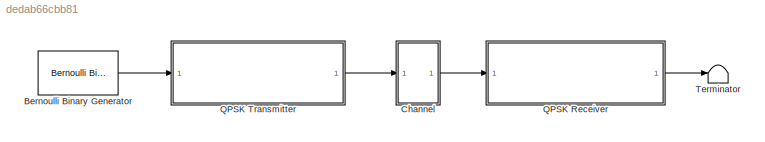
MODEL slx_dedab66cbb81
KIND model
CONFIG AbsTol = auto
CONFIG EnableMultiTasking = off
CONFIG FixedStep = auto
CONFIG InitFcn = QPSK_ini
CONFIG MaxStep = auto
CONFIG MinStep = auto
CONFIG RelTol = 1e-3
CONFIG SampleTimeConstraint = Unconstrained
CONFIG Solver = VariableStepAuto
CONFIG SolverName = VariableStepAuto
CONFIG StartTime = 0.0
CONFIG StopTime = inf
BLOCK [Reference] Bernoulli Binary Generator  REF=commrandsrc3/Bernoulli Binary
Generator
  Ports = [0, 1]
  SourceBlock = commrandsrc3/Bernoulli Binary\nGenerator
  SourceProductBaseCode = CM
  SourceProductName = Communications Toolbox
  SourceType = Bernoulli Binary Generator
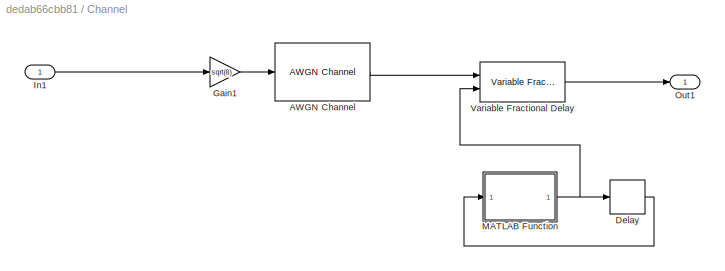
BLOCK [SubSystem] Channel
  Ports = [1, 1]
  RequestExecContextInheritance = off
BLOCK [Reference] Channel/AWGN Channel  REF=commchan3/AWGN
Channel
  Ports = [1, 1]
  SourceBlock = commchan3/AWGN\nChannel
  SourceProductBaseCode = CM
  SourceProductName = Communications Toolbox
  SourceType = AWGN Channel
  UserDataPersistent = on
BLOCK [Delay] Channel/Delay
  DelayLength = 1
  InputPortMap = u0
  Ports = [1, 1]
BLOCK [Gain] Channel/Gain1
  Gain = sqrt(8)
  OutDataTypeStr = Inherit: Inherit via internal rule
  ParamDataTypeStr = Inherit: Inherit via internal rule
  SaturateOnIntegerOverflow = off
BLOCK [Inport] Channel/In1
  IconDisplay = Port number
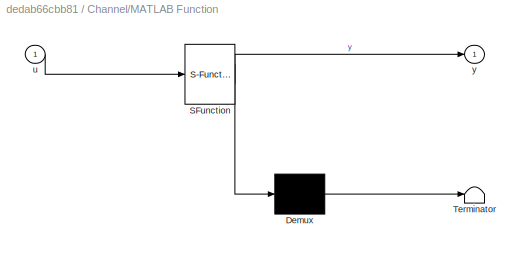
BLOCK [SubSystem] Channel/MATLAB Function
  ErrorFcn = Stateflow.Translate.translate
  PermitHierarchicalResolution = ExplicitOnly
  Ports = [1, 1]
  RequestExecContextInheritance = off
  SFBlockType = MATLAB Function
  TreatAsAtomicUnit = on
BLOCK [Demux] Channel/MATLAB Function/ Demux 
  Outputs = 1
  Ports = [1, 1]
BLOCK [S-Function] Channel/MATLAB Function/ SFunction 
  EnableBusSupport = on
  FunctionName = sf_sfun
  PortCounts = [1 2]
  Ports = [1, 2]
  SFcnIsStateOwnerBlock = off
  SFunctionDeploymentMode = off
  Tag = Stateflow S-Function QPSK_HW10 2
BLOCK [Terminator] Channel/MATLAB Function/ Terminator 
BLOCK [Inport] Channel/MATLAB Function/u
  IconDisplay = Port number
BLOCK [Outport] Channel/MATLAB Function/y
  IconDisplay = Port number
BLOCK [Outport] Channel/Out1
  IconDisplay = Port number
BLOCK [Reference] Channel/Variable Fractional Delay  REF=dspsigops/Variable
Fractional Delay
  Ports = [2, 1]
  SourceBlock = dspsigops/Variable\nFractional Delay
  SourceProductBaseCode = DS
  SourceProductName = DSP System Toolbox
  SourceType = Variable Fractional Delay
  UserDataPersistent = on
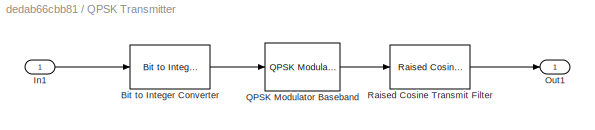
BLOCK [SubSystem] QPSK  Transmitter
  Ports = [1, 1]
  RequestExecContextInheritance = off
BLOCK [Reference] QPSK  Transmitter/Bit to Integer Converter  REF=commutil2/Bit to Integer
Converter
  Ports = [1, 1]
  SourceBlock = commutil2/Bit to Integer\nConverter
  SourceProductBaseCode = CM
  SourceProductName = Communications Toolbox
  SourceType = Bit to Integer Converter
BLOCK [Inport] QPSK  Transmitter/In1
  IconDisplay = Port number
BLOCK [Outport] QPSK  Transmitter/Out1
  IconDisplay = Port number
BLOCK [Reference] QPSK  Transmitter/QPSK Modulator Baseband  REF=commdigbbndpm3/QPSK
Modulator
Baseband
  Ports = [1, 1]
  SourceBlock = commdigbbndpm3/QPSK\nModulator\nBaseband
  SourceProductBaseCode = CM
  SourceProductName = Communications Toolbox
  SourceType = QPSK Modulator Baseband
BLOCK [Reference] QPSK  Transmitter/Raised Cosine Transmit Filter  REF=commfilt2/Raised Cosine
Transmit Filter
  Ports = [1, 1]
  SourceBlock = commfilt2/Raised Cosine\nTransmit Filter
  SourceProductBaseCode = CM
  SourceProductName = Communications Toolbox
  SourceType = Raised Cosine Transmit Filter
  UserDataPersistent = on
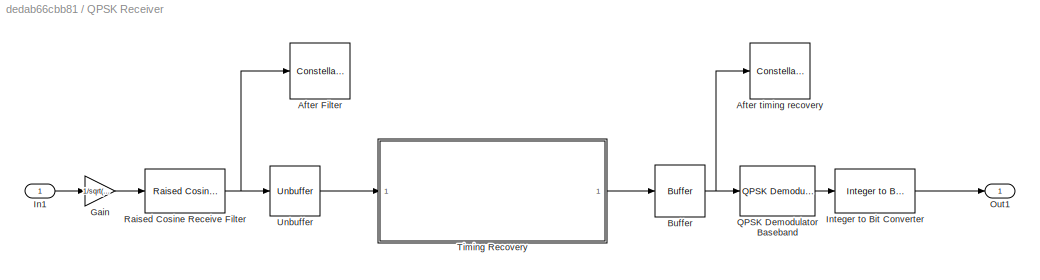
BLOCK [SubSystem] QPSK Receiver
  Ports = [1, 1]
  RequestExecContextInheritance = off
BLOCK [ConstellationDiagram] QPSK Receiver/After Filter
  Ports = [1]
  ScopeSpecificationString = comm.scopes.ConstellationDiagramBlockCfg('CurrentConfiguration', extmgr.ConfigurationSet(extmgr.Configuration('Core','General UI',true),extmgr.Configuration('Core','Source UI',true),extmgr.Configuration('Sources','WiredSimulink',true),extmgr.Configuration('Sources','SimulinkEvent',false),extmgr.Configuration('Sources','Simulink',false),extmgr.Configuration('Sources','File',false),extmgr.Configurat...<+2057ch>
BLOCK [ConstellationDiagram] QPSK Receiver/After timing recovery 
  Ports = [1]
  ScopeSpecificationString = comm.scopes.ConstellationDiagramBlockCfg('CurrentConfiguration', extmgr.ConfigurationSet(extmgr.Configuration('Core','General UI',true),extmgr.Configuration('Core','Source UI',true),extmgr.Configuration('Sources','WiredSimulink',true),extmgr.Configuration('Sources','SimulinkEvent',false),extmgr.Configuration('Sources','Simulink',false),extmgr.Configuration('Sources','File',false),extmgr.Configurat...<+2260ch>
BLOCK [Buffer] QPSK Receiver/Buffer
  N = 256
  OutputFrames = off
BLOCK [Gain] QPSK Receiver/Gain
  Gain = 1/sqrt(8)
  OutDataTypeStr = Inherit: Inherit via internal rule
  ParamDataTypeStr = Inherit: Inherit via internal rule
  SaturateOnIntegerOverflow = off
BLOCK [Inport] QPSK Receiver/In1
  IconDisplay = Port number
BLOCK [Reference] QPSK Receiver/Integer to Bit Converter  REF=commutil2/Integer to Bit
Converter
  Ports = [1, 1]
  SourceBlock = commutil2/Integer to Bit\nConverter
  SourceProductBaseCode = CM
  SourceProductName = Communications Toolbox
  SourceType = Integer to Bit Converter
BLOCK [Outport] QPSK Receiver/Out1
  IconDisplay = Port number
BLOCK [Reference] QPSK Receiver/QPSK Demodulator Baseband  REF=commdigbbndpm3/QPSK
Demodulator
Baseband
  Ports = [1, 1]
  SourceBlock = commdigbbndpm3/QPSK\nDemodulator\nBaseband
  SourceProductBaseCode = CM
  SourceProductName = Communications Toolbox
  SourceType = QPSK Demodulator Baseband
BLOCK [Reference] QPSK Receiver/Raised Cosine Receive Filter  REF=commfilt2/Raised Cosine
Receive Filter
  Ports = [1, 1]
  SourceBlock = commfilt2/Raised Cosine\nReceive Filter
  SourceProductBaseCode = CM
  SourceProductName = Communications Toolbox
  SourceType = Raised Cosine Receive Filter
  UserDataPersistent = on
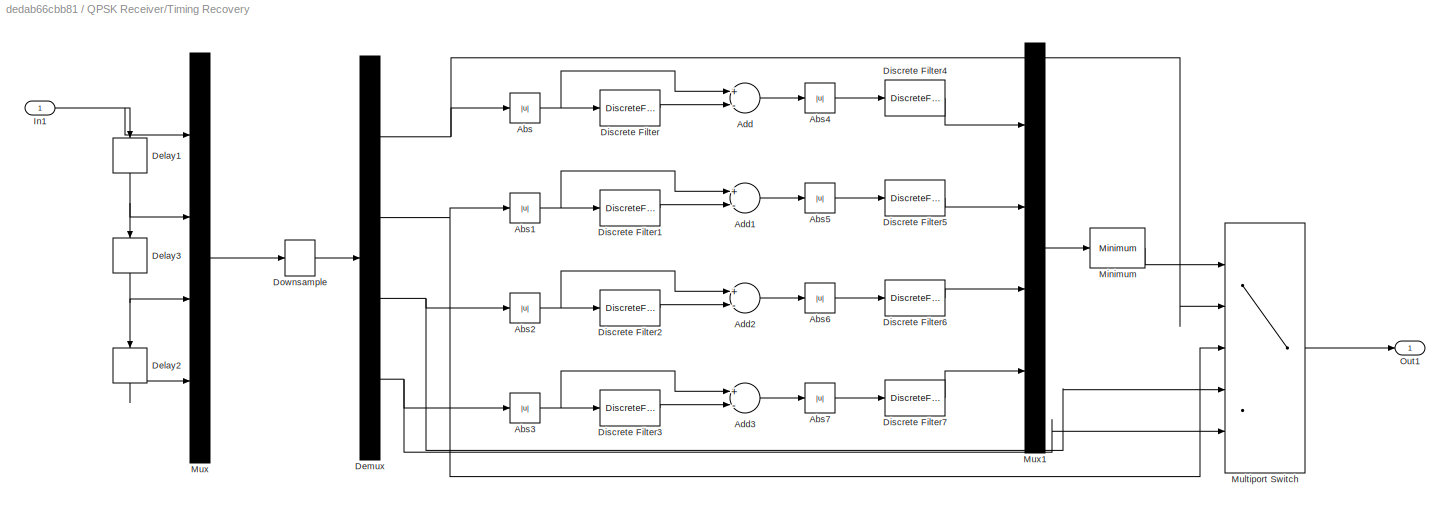
BLOCK [SubSystem] QPSK Receiver/Timing Recovery
  Ports = [1, 1]
  RequestExecContextInheritance = off
BLOCK [Abs] QPSK Receiver/Timing Recovery/Abs
  SaturateOnIntegerOverflow = off
BLOCK [Abs] QPSK Receiver/Timing Recovery/Abs1
  SaturateOnIntegerOverflow = off
BLOCK [Abs] QPSK Receiver/Timing Recovery/Abs2
  SaturateOnIntegerOverflow = off
BLOCK [Abs] QPSK Receiver/Timing Recovery/Abs3
  SaturateOnIntegerOverflow = off
BLOCK [Abs] QPSK Receiver/Timing Recovery/Abs4
  SaturateOnIntegerOverflow = off
BLOCK [Abs] QPSK Receiver/Timing Recovery/Abs5
  SaturateOnIntegerOverflow = off
BLOCK [Abs] QPSK Receiver/Timing Recovery/Abs6
  SaturateOnIntegerOverflow = off
BLOCK [Abs] QPSK Receiver/Timing Recovery/Abs7
  SaturateOnIntegerOverflow = off
BLOCK [Sum] QPSK Receiver/Timing Recovery/Add
  InputSameDT = off
  Inputs = +-
  OutDataTypeStr = Inherit: Inherit via internal rule
  Ports = [2, 1]
  SaturateOnIntegerOverflow = off
BLOCK [Sum] QPSK Receiver/Timing Recovery/Add1
  InputSameDT = off
  Inputs = +-
  OutDataTypeStr = Inherit: Inherit via internal rule
  Ports = [2, 1]
  SaturateOnIntegerOverflow = off
BLOCK [Sum] QPSK Receiver/Timing Recovery/Add2
  InputSameDT = off
  Inputs = +-
  OutDataTypeStr = Inherit: Inherit via internal rule
  Ports = [2, 1]
  SaturateOnIntegerOverflow = off
BLOCK [Sum] QPSK Receiver/Timing Recovery/Add3
  InputSameDT = off
  Inputs = +-
  OutDataTypeStr = Inherit: Inherit via internal rule
  Ports = [2, 1]
  SaturateOnIntegerOverflow = off
BLOCK [Delay] QPSK Receiver/Timing Recovery/Delay1
  DelayLength = 1
  InputPortMap = u0
  Ports = [1, 1]
BLOCK [Delay] QPSK Receiver/Timing Recovery/Delay2
  DelayLength = 1
  InputPortMap = u0
  Ports = [1, 1]
BLOCK [Delay] QPSK Receiver/Timing Recovery/Delay3
  DelayLength = 1
  InputPortMap = u0
  Ports = [1, 1]
BLOCK [Demux] QPSK Receiver/Timing Recovery/Demux
  DisplayOption = bar
  Ports = [1, 4]
BLOCK [DiscreteFilter] QPSK Receiver/Timing Recovery/Discrete Filter
  Denominator = [1 0.92]
  InputPortMap = u0
  InputProcessing = Columns as channels (frame based)
  Numerator = [1-0.92]
  Ports = [1, 1]
BLOCK [DiscreteFilter] QPSK Receiver/Timing Recovery/Discrete Filter1
  Denominator = [1 0.92]
  InputPortMap = u0
  InputProcessing = Columns as channels (frame based)
  Numerator = [1-0.92]
  Ports = [1, 1]
BLOCK [DiscreteFilter] QPSK Receiver/Timing Recovery/Discrete Filter2
  Denominator = [1 0.92]
  InputPortMap = u0
  InputProcessing = Columns as channels (frame based)
  Numerator = [1-0.92]
  Ports = [1, 1]
BLOCK [DiscreteFilter] QPSK Receiver/Timing Recovery/Discrete Filter3
  Denominator = [1 0.92]
  InputPortMap = u0
  InputProcessing = Columns as channels (frame based)
  Numerator = [1-0.92]
  Ports = [1, 1]
BLOCK [DiscreteFilter] QPSK Receiver/Timing Recovery/Discrete Filter4
  Denominator = [1 0.92]
  InputPortMap = u0
  InputProcessing = Columns as channels (frame based)
  Numerator = [1-0.92]
  Ports = [1, 1]
BLOCK [DiscreteFilter] QPSK Receiver/Timing Recovery/Discrete Filter5
  Denominator = [1 0.92]
  InputPortMap = u0
  InputProcessing = Columns as channels (frame based)
  Numerator = [1-0.92]
  Ports = [1, 1]
BLOCK [DiscreteFilter] QPSK Receiver/Timing Recovery/Discrete Filter6
  Denominator = [1 0.92]
  InputPortMap = u0
  InputProcessing = Columns as channels (frame based)
  Numerator = [1-0.92]
  Ports = [1, 1]
BLOCK [DiscreteFilter] QPSK Receiver/Timing Recovery/Discrete Filter7
  Denominator = [1 0.92]
  InputPortMap = u0
  InputProcessing = Columns as channels (frame based)
  Numerator = [1-0.92]
  Ports = [1, 1]
BLOCK [DownSample] QPSK Receiver/Timing Recovery/Downsample
  InputProcessing = Elements as channels (sample based)
  N = 4
  RateOptions = Allow multirate processing
BLOCK [Inport] QPSK Receiver/Timing Recovery/In1
  IconDisplay = Port number
BLOCK [Reference] QPSK Receiver/Timing Recovery/Minimum  REF=dspstat3/Minimum
  Ports = [1, 1]
  SourceBlock = dspstat3/Minimum
  SourceProductBaseCode = DS
  SourceProductName = DSP System Toolbox
  SourceType = Minimum
  UserDataPersistent = on
BLOCK [MultiPortSwitch] QPSK Receiver/Timing Recovery/Multiport Switch
  InputSameDT = off
  Inputs = 4
  Ports = [5, 1]
  SaturateOnIntegerOverflow = off
BLOCK [Mux] QPSK Receiver/Timing Recovery/Mux
  DisplayOption = bar
  Ports = [4, 1]
BLOCK [Mux] QPSK Receiver/Timing Recovery/Mux1
  DisplayOption = bar
  Ports = [4, 1]
BLOCK [Outport] QPSK Receiver/Timing Recovery/Out1
  IconDisplay = Port number
BLOCK [Unbuffer] QPSK Receiver/Unbuffer
  Ports = [1, 1]
BLOCK [Terminator] Terminator
LINE Bernoulli Binary Generator:1 -> QPSK  Transmitter:1
LINE Channel/AWGN Channel:1 -> Channel/Variable Fractional Delay:1
LINE Channel/Delay:1 -> Channel/MATLAB Function:1
LINE Channel/Gain1:1 -> Channel/AWGN Channel:1
LINE Channel/In1:1 -> Channel/Gain1:1
NET Channel/MATLAB Function:1 -> Channel/Delay:1, Channel/Variable Fractional Delay:2
LINE Channel/Variable Fractional Delay:1 -> Channel/Out1:1
LINE Channel:1 -> QPSK Receiver:1
LINE QPSK  Transmitter/Bit to Integer Converter:1 -> QPSK  Transmitter/QPSK Modulator Baseband:1
LINE QPSK  Transmitter/In1:1 -> QPSK  Transmitter/Bit to Integer Converter:1
LINE QPSK  Transmitter/QPSK Modulator Baseband:1 -> QPSK  Transmitter/Raised Cosine Transmit Filter:1
LINE QPSK  Transmitter/Raised Cosine Transmit Filter:1 -> QPSK  Transmitter/Out1:1
LINE QPSK  Transmitter:1 -> Channel:1
NET QPSK Receiver/Buffer:1 -> QPSK Receiver/After timing recovery :1, QPSK Receiver/QPSK Demodulator Baseband:1
LINE QPSK Receiver/Gain:1 -> QPSK Receiver/Raised Cosine Receive Filter:1
LINE QPSK Receiver/In1:1 -> QPSK Receiver/Gain:1
LINE QPSK Receiver/Integer to Bit Converter:1 -> QPSK Receiver/Out1:1
LINE QPSK Receiver/QPSK Demodulator Baseband:1 -> QPSK Receiver/Integer to Bit Converter:1
NET QPSK Receiver/Raised Cosine Receive Filter:1 -> QPSK Receiver/After Filter:1, QPSK Receiver/Unbuffer:1
NET QPSK Receiver/Timing Recovery/Abs1:1 -> QPSK Receiver/Timing Recovery/Add1:1, QPSK Receiver/Timing Recovery/Discrete Filter1:1
NET QPSK Receiver/Timing Recovery/Abs2:1 -> QPSK Receiver/Timing Recovery/Add2:1, QPSK Receiver/Timing Recovery/Discrete Filter2:1
NET QPSK Receiver/Timing Recovery/Abs3:1 -> QPSK Receiver/Timing Recovery/Add3:1, QPSK Receiver/Timing Recovery/Discrete Filter3:1
LINE QPSK Receiver/Timing Recovery/Abs4:1 -> QPSK Receiver/Timing Recovery/Discrete Filter4:1
LINE QPSK Receiver/Timing Recovery/Abs5:1 -> QPSK Receiver/Timing Recovery/Discrete Filter5:1
LINE QPSK Receiver/Timing Recovery/Abs6:1 -> QPSK Receiver/Timing Recovery/Discrete Filter6:1
LINE QPSK Receiver/Timing Recovery/Abs7:1 -> QPSK Receiver/Timing Recovery/Discrete Filter7:1
NET QPSK Receiver/Timing Recovery/Abs:1 -> QPSK Receiver/Timing Recovery/Add:1, QPSK Receiver/Timing Recovery/Discrete Filter:1
LINE QPSK Receiver/Timing Recovery/Add1:1 -> QPSK Receiver/Timing Recovery/Abs5:1
LINE QPSK Receiver/Timing Recovery/Add2:1 -> QPSK Receiver/Timing Recovery/Abs6:1
LINE QPSK Receiver/Timing Recovery/Add3:1 -> QPSK Receiver/Timing Recovery/Abs7:1
LINE QPSK Receiver/Timing Recovery/Add:1 -> QPSK Receiver/Timing Recovery/Abs4:1
NET QPSK Receiver/Timing Recovery/Delay1:1 -> QPSK Receiver/Timing Recovery/Delay3:1, QPSK Receiver/Timing Recovery/Mux:2
LINE QPSK Receiver/Timing Recovery/Delay2:1 -> QPSK Receiver/Timing Recovery/Mux:4
NET QPSK Receiver/Timing Recovery/Delay3:1 -> QPSK Receiver/Timing Recovery/Delay2:1, QPSK Receiver/Timing Recovery/Mux:3
NET QPSK Receiver/Timing Recovery/Demux:1 -> QPSK Receiver/Timing Recovery/Abs:1, QPSK Receiver/Timing Recovery/Multiport Switch:2
NET QPSK Receiver/Timing Recovery/Demux:2 -> QPSK Receiver/Timing Recovery/Abs1:1, QPSK Receiver/Timing Recovery/Multiport Switch:3
NET QPSK Receiver/Timing Recovery/Demux:3 -> QPSK Receiver/Timing Recovery/Abs2:1, QPSK Receiver/Timing Recovery/Multiport Switch:4
NET QPSK Receiver/Timing Recovery/Demux:4 -> QPSK Receiver/Timing Recovery/Abs3:1, QPSK Receiver/Timing Recovery/Multiport Switch:5
LINE QPSK Receiver/Timing Recovery/Discrete Filter1:1 -> QPSK Receiver/Timing Recovery/Add1:2
LINE QPSK Receiver/Timing Recovery/Discrete Filter2:1 -> QPSK Receiver/Timing Recovery/Add2:2
LINE QPSK Receiver/Timing Recovery/Discrete Filter3:1 -> QPSK Receiver/Timing Recovery/Add3:2
LINE QPSK Receiver/Timing Recovery/Discrete Filter4:1 -> QPSK Receiver/Timing Recovery/Mux1:1
LINE QPSK Receiver/Timing Recovery/Discrete Filter5:1 -> QPSK Receiver/Timing Recovery/Mux1:2
LINE QPSK Receiver/Timing Recovery/Discrete Filter6:1 -> QPSK Receiver/Timing Recovery/Mux1:3
LINE QPSK Receiver/Timing Recovery/Discrete Filter7:1 -> QPSK Receiver/Timing Recovery/Mux1:4
LINE QPSK Receiver/Timing Recovery/Discrete Filter:1 -> QPSK Receiver/Timing Recovery/Add:2
LINE QPSK Receiver/Timing Recovery/Downsample:1 -> QPSK Receiver/Timing Recovery/Demux:1
NET QPSK Receiver/Timing Recovery/In1:1 -> QPSK Receiver/Timing Recovery/Delay1:1, QPSK Receiver/Timing Recovery/Mux:1
LINE QPSK Receiver/Timing Recovery/Minimum:1 -> QPSK Receiver/Timing Recovery/Multiport Switch:1
LINE QPSK Receiver/Timing Recovery/Multiport Switch:1 -> QPSK Receiver/Timing Recovery/Out1:1
LINE QPSK Receiver/Timing Recovery/Mux1:1 -> QPSK Receiver/Timing Recovery/Minimum:1
LINE QPSK Receiver/Timing Recovery/Mux:1 -> QPSK Receiver/Timing Recovery/Downsample:1
LINE QPSK Receiver/Timing Recovery:1 -> QPSK Receiver/Buffer:1
LINE QPSK Receiver/Unbuffer:1 -> QPSK Receiver/Timing Recovery:1
LINE QPSK Receiver:1 -> Terminator:1
note: NET lines group one-source signal fan-out (src -> all destinations, sorted); 1:1 wires keep LINE
CHART Channel/MATLAB Function states=1 transitions=1
  STATE_LABEL 'eML_blk_kernel()'
  STATE_LABEL 'SCRIPT:\nfunction y = fcn(u)\n\ny = u + 0.001;\n'
